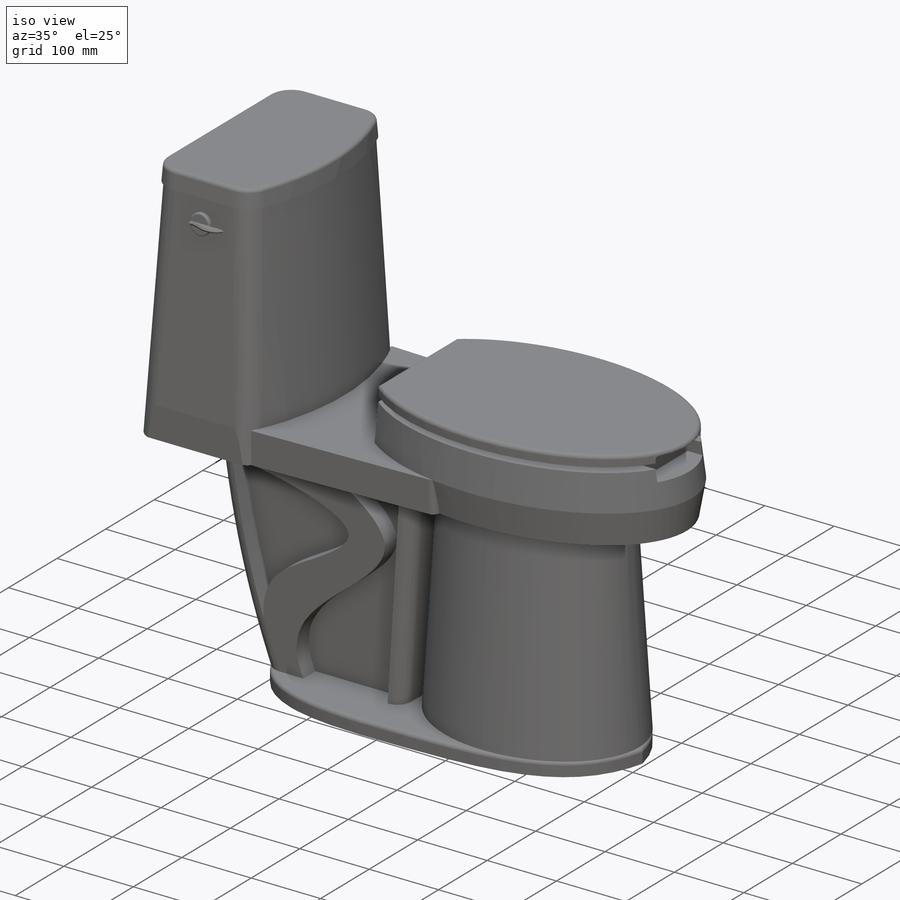
[diagram: iso view]
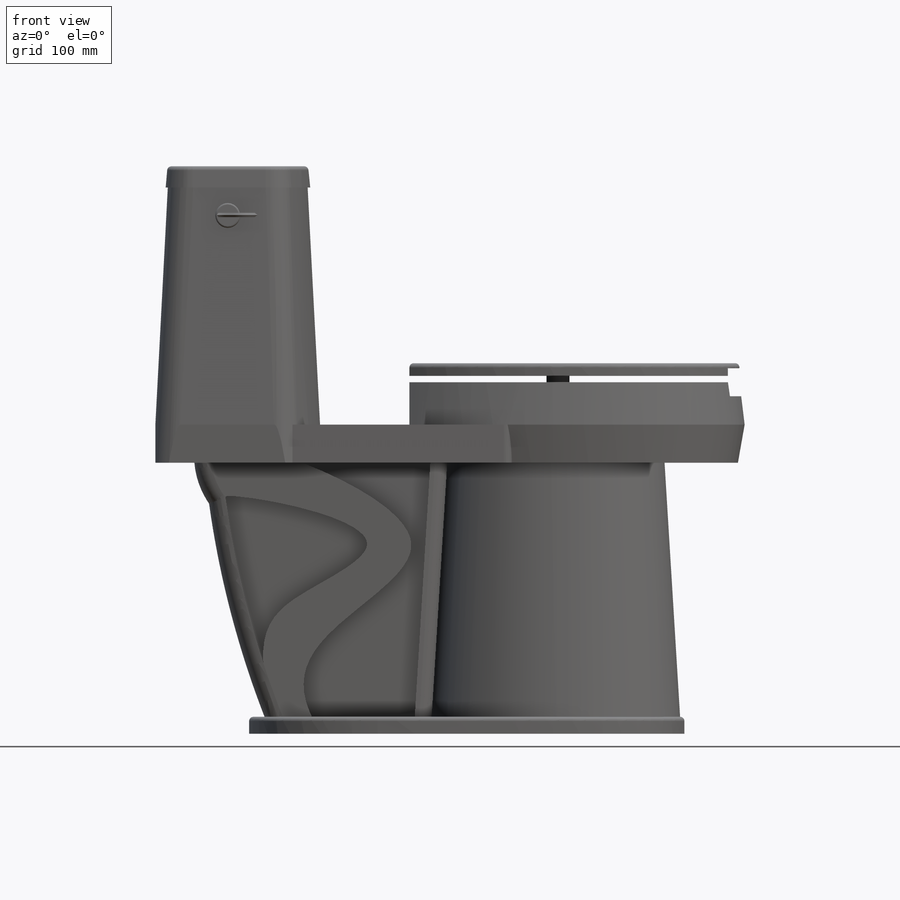
[diagram: front view]
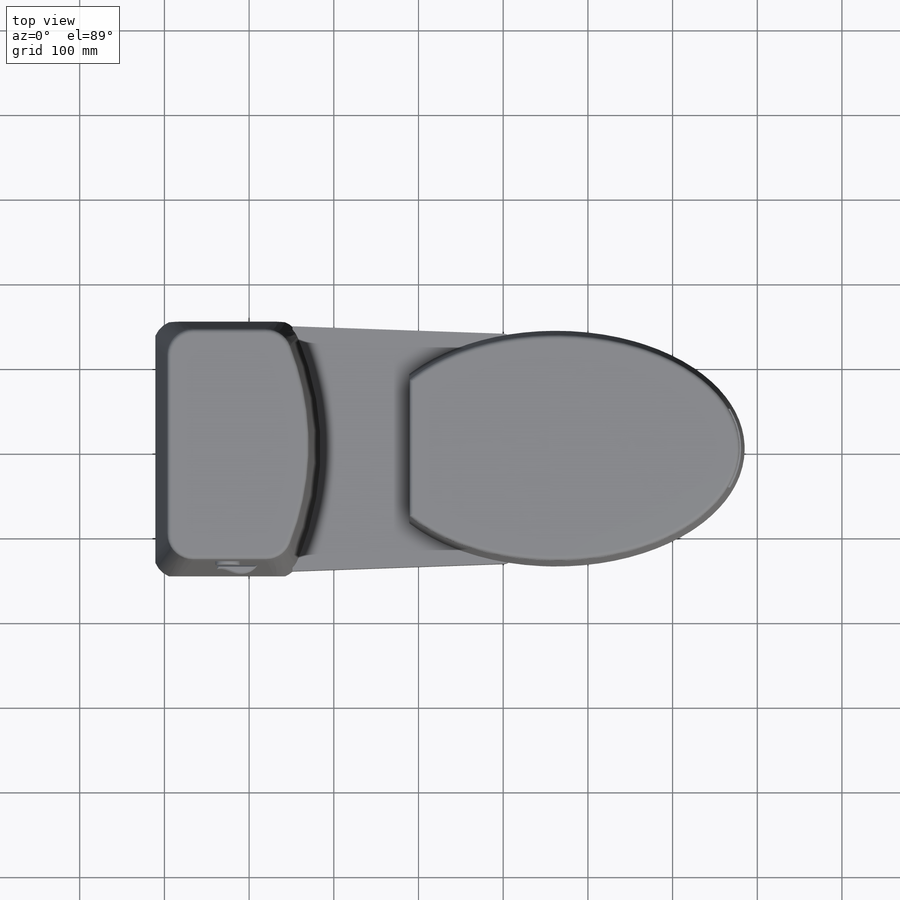
[diagram: top view]
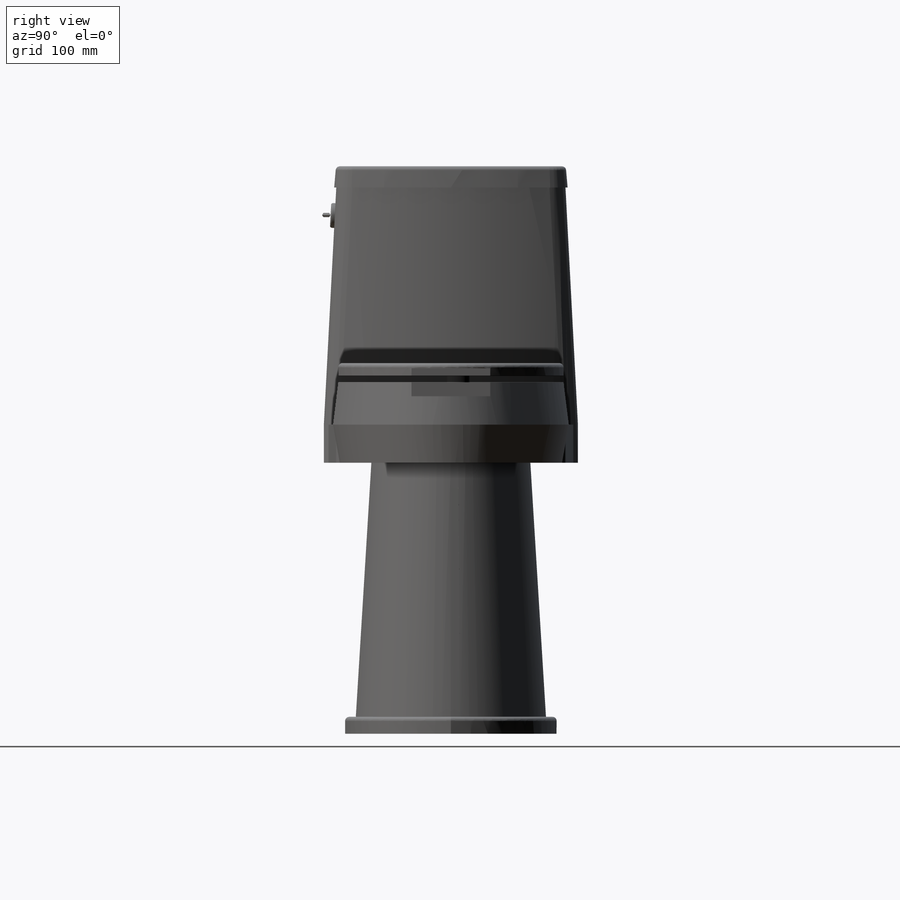
[diagram: right view]
SOLIDWORKS PART (.sldprt)
format: sldprt  version: not decoded by parser v0  size: 796,672 bytes
history: native  units: mm
features: sketch x18, extrude x14, fillet x7, plane x5, cut_extrude x3, material x1, mirror x1 (+13 scaffold rows collapsed)
feature tree (62):
  scaffold x13  (default folders/planes/origin — collapsed)
  material  "Material <sin especificar>"
  plane  "Alzado"
  plane  "Planta"
  plane  "Vista lateral"
  sketch  "Croquis1"  dims[D1=514.0mm D2=248.0mm D3=257.0mm D4=124.0mm D5=160.0mm D6=80.0mm D7=35.0mm]
  extrude  "Saliente-Extruir1"  Depth=20mm
  fillet  "Redondeo1"  Radius=5mm
  sketch  "Croquis2"  dims[D1=210.0mm]
  extrude  "Saliente-Extruir2"  Depth=300mm
  sketch  "Croquis4"
  extrude  "Saliente-Extruir3"  Depth=45mm
  sketch  "Croquis5"  dims[D1=0.0mm]
  extrude  "Saliente-Extruir4"  Depth=50mm
  sketch  "Croquis6"
  extrude  "Saliente-Extruir5"  Depth=7.5mm
  sketch  "Croquis7"  dims[D1=0.0mm]
  extrude  "Saliente-Extruir6"  Depth=15mm
  sketch  "Croquis8"  dims[D1=~304.611012mm]
  cut_extrude  "Cortar-Extruir1"  Depth=141mm
  sketch  "Croquis9"  dims[D1=750.0mm D2=300.0mm]
  extrude  "Saliente-Extruir7"  [1 undecoded]
  sketch  "Croquis10"  dims[D1=300.0mm]
  extrude  "Saliente-Extruir8"  Depth=280mm
  sketch  "Croquis11"
  extrude  "Saliente-Extruir9"  [1 undecoded]
  sketch  "Croquis12"  dims[D1=0.0mm D2=10.0mm]
  fillet  "Redondeo3"  Radius=5mm
  sketch  "Croquis13"
  extrude  "Saliente-Extruir12"  Depth=140mm
  fillet  "Redondeo4"  Radius=20mm
  sketch  "Croquis14"
  cut_extrude  "Cortar-Extruir2"  Depth=25mm
  mirror  "Simetría1"
  fillet  "Redondeo6"  Radius=30mm
  sketch  "Croquis15"  dims[D1=0.0mm D2=2.5mm]
  extrude  "Saliente-Extruir13"  Depth=25mm
  fillet  "Redondeo7"  Radius=5mm
  sketch  "Croquis16"
  extrude  "Saliente-Extruir14"  Depth=5mm
  fillet  "Redondeo8"  Radius=2mm
  plane  "Plano1"  Offset=612.5mm
  sketch  "Croquis17"
  extrude  "Saliente-Extruir15"  Depth=5mm
  plane  "Plano2"  Offset=612.5mm
  sketch  "Croquis18"
  cut_extrude  "Cortar-Extruir3"  Depth=66mm
  sketch  "Croquis19"
  extrude  "Saliente-Extruir17"  [1 undecoded]
  fillet  "Redondeo9"  Radius=10mm
decode coverage: 30 of 43 modeling features carry decoded parameters
note: ~ marks probable driven/reference dimensions
note: 3 parameter values undecoded
summary: no parameter record found for 3 features
note: suppression state not decoded; provenance and decode notes live in map.json
